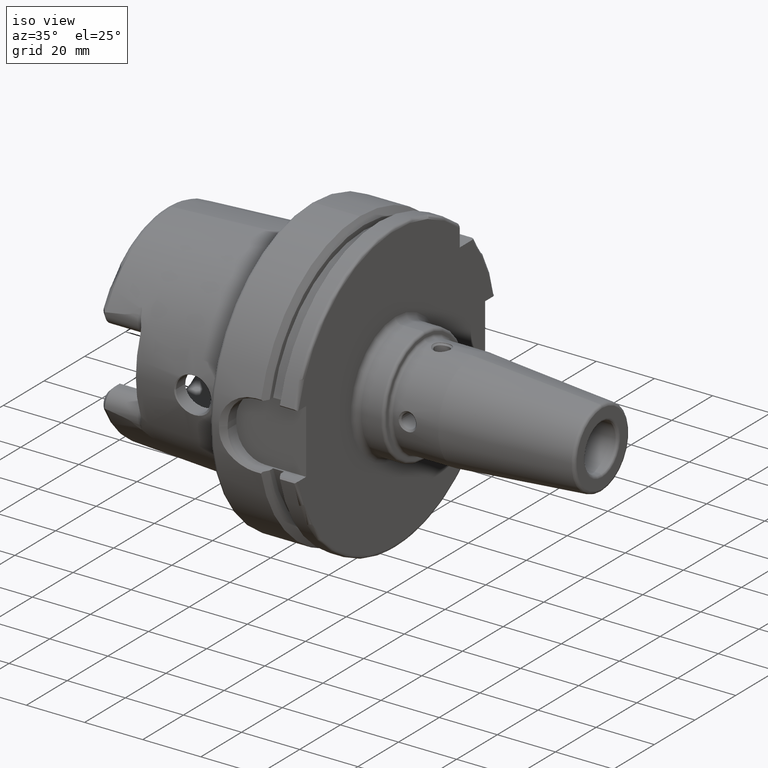
[diagram: clean part render]
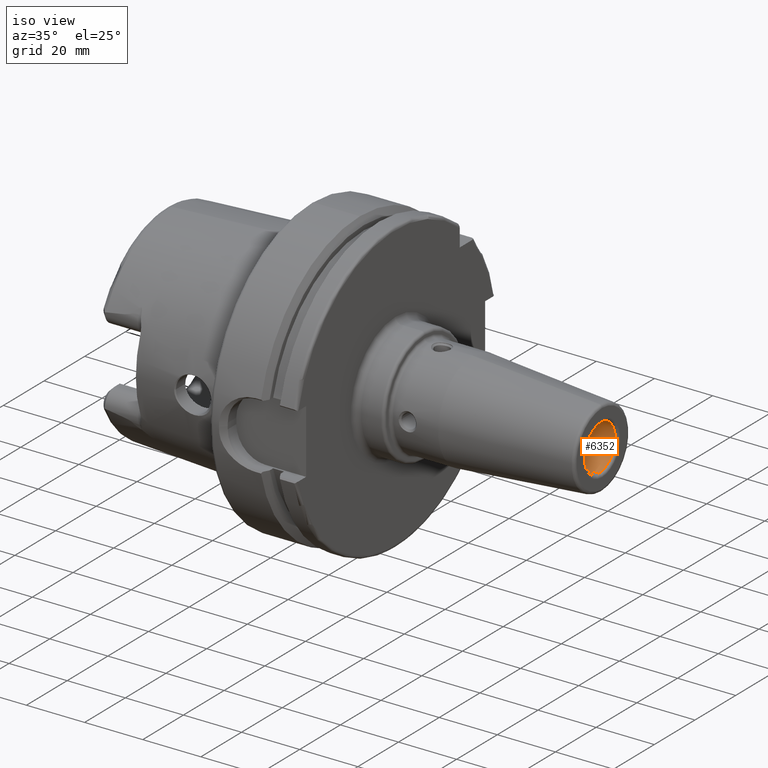
[diagram: same view with one face highlighted and labeled with its STEP entity id]
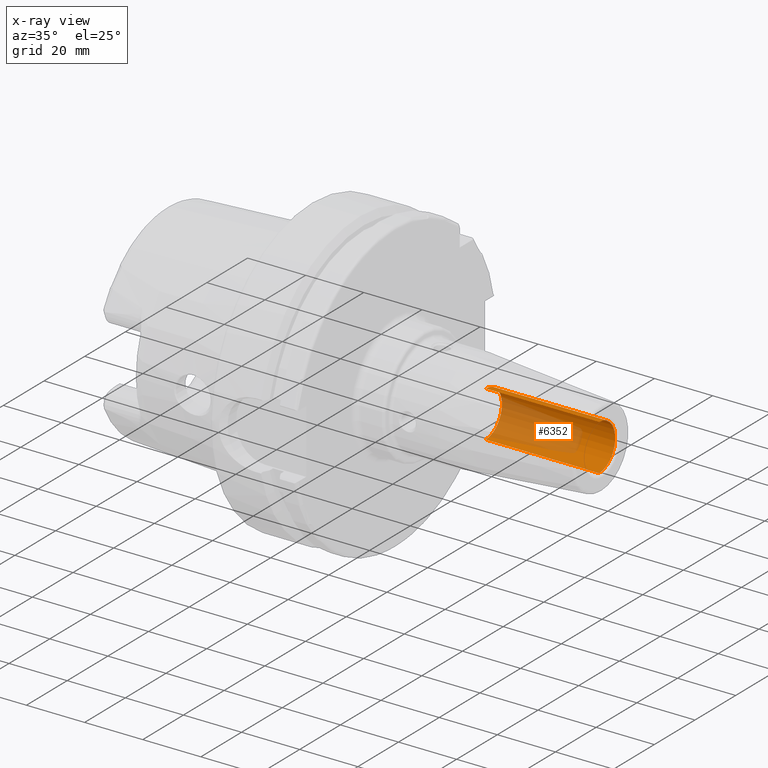
[diagram: x-ray of the same camera — body ghosted, the highlighted face saturated]
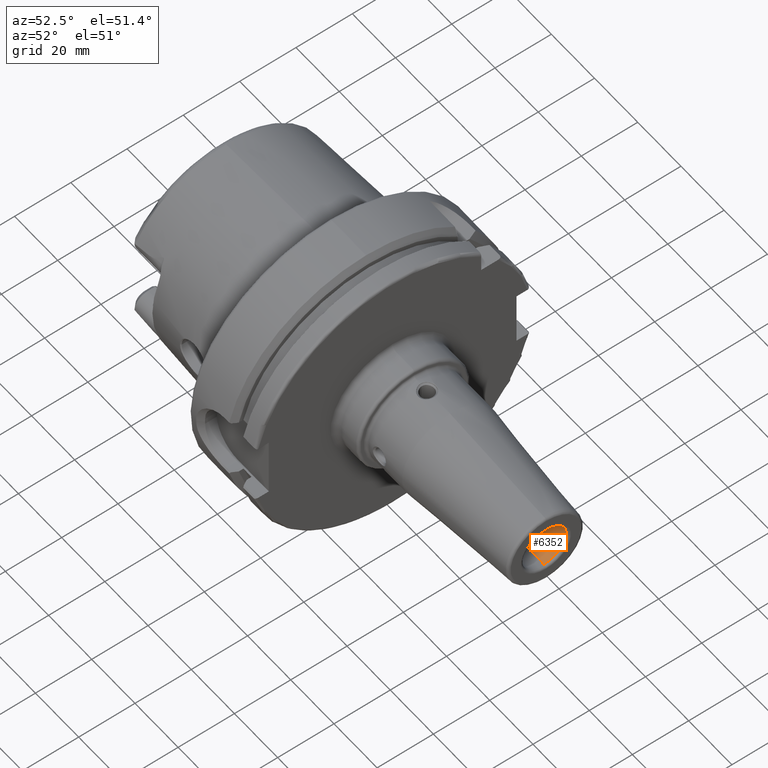
[diagram: same view with one face highlighted and labeled with its STEP entity id]
A machine part, iso view. The second image highlights one B-rep face of the part: STEP entity #6352.
The next image is the same camera in x-ray: the body ghosted, the highlighted face saturated — about 46% of this face is hidden behind the body in this view.
A second angle (auxiliary view) of the same face is appended — the face is thin or edge-on in the first view.
In plain terms, the highlighted cylindrical surface (edge-blend (fillet) strip) has radius 7.9375 mm, axis along (1, 0, 0).
Its self-contained STEP definition (entity closure, byte-faithful):
#2529=CARTESIAN_POINT('',(9.900000000001E1,0.E0,0.E0));
#2530=DIRECTION('',(1.E0,0.E0,0.E0));
#2531=DIRECTION('',(0.E0,0.E0,-1.E0));
#2532=AXIS2_PLACEMENT_3D('',#2529,#2530,#2531);
#2539=DIRECTION('',(-1.E0,0.E0,0.E0));
#2540=VECTOR('',#2539,3.9E1);
#2541=CARTESIAN_POINT('',(9.900000000001E1,0.E0,-7.937499999999E0));
#2542=LINE('',#2541,#2540);
#2543=DIRECTION('',(-1.E0,0.E0,0.E0));
#2544=VECTOR('',#2543,3.9E1);
#2545=CARTESIAN_POINT('',(9.900000000001E1,0.E0,7.937499999999E0));
#2546=LINE('',#2545,#2544);
#2557=CARTESIAN_POINT('',(6.000000000001E1,0.E0,0.E0));
#2558=DIRECTION('',(-1.E0,0.E0,0.E0));
#2559=DIRECTION('',(0.E0,0.E0,1.E0));
#2560=AXIS2_PLACEMENT_3D('',#2557,#2558,#2559);
#3527=CARTESIAN_POINT('',(9.900000000001E1,0.E0,-7.937499999999E0));
#3528=VERTEX_POINT('',#3527);
#3529=CARTESIAN_POINT('',(9.900000000001E1,0.E0,7.937499999999E0));
#3530=VERTEX_POINT('',#3529);
#3531=CARTESIAN_POINT('',(6.000000000001E1,0.E0,-7.937499999999E0));
#3532=VERTEX_POINT('',#3531);
#3533=CARTESIAN_POINT('',(6.000000000001E1,0.E0,7.937499999999E0));
#3534=VERTEX_POINT('',#3533);
#6338=CARTESIAN_POINT('',(2.545E1,0.E0,0.E0));
#6339=DIRECTION('',(1.E0,0.E0,0.E0));
#6340=DIRECTION('',(0.E0,0.E0,1.E0));
#6341=AXIS2_PLACEMENT_3D('',#6338,#6339,#6340);
#6342=CYLINDRICAL_SURFACE('',#6341,7.937499999999E0);
#6344=ORIENTED_EDGE('',*,*,#6343,.T.);
#6346=ORIENTED_EDGE('',*,*,#6345,.F.);
#6348=ORIENTED_EDGE('',*,*,#6347,.F.);
#6349=ORIENTED_EDGE('',*,*,#6331,.F.);
#6350=EDGE_LOOP('',(#6344,#6346,#6348,#6349));
#6351=FACE_OUTER_BOUND('',#6350,.F.);
#6352=ADVANCED_FACE('',(#6351),#6342,.F.);
#2533=CIRCLE('',#2532,7.937499999999E0);
#2561=CIRCLE('',#2560,7.937499999999E0);
#6331=EDGE_CURVE('',#3528,#3530,#2533,.T.);
#6343=EDGE_CURVE('',#3528,#3532,#2542,.T.);
#6345=EDGE_CURVE('',#3534,#3532,#2561,.T.);
#6347=EDGE_CURVE('',#3530,#3534,#2546,.T.);